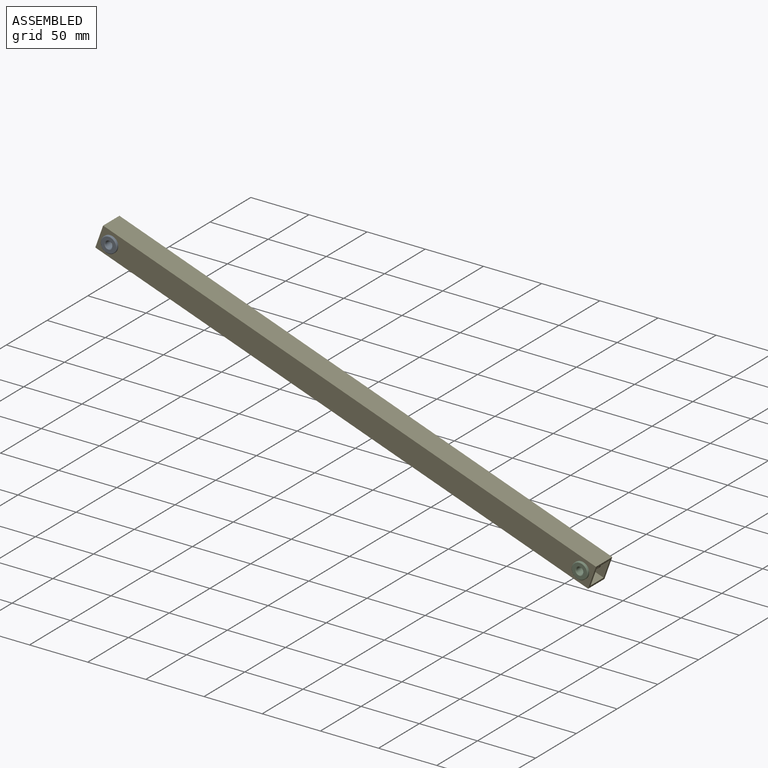
[diagram: assembled view]
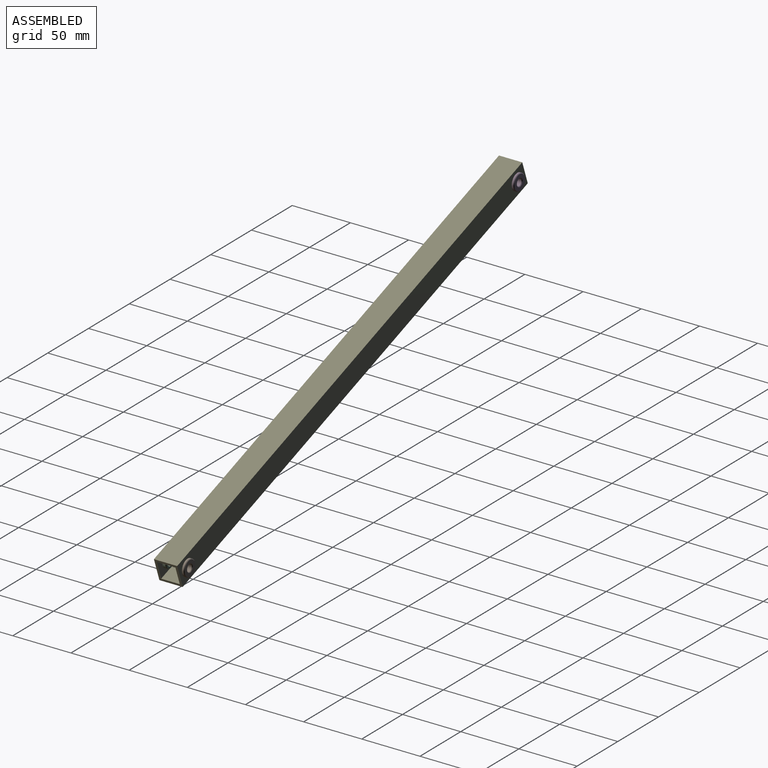
[diagram: assembled view, second angle]
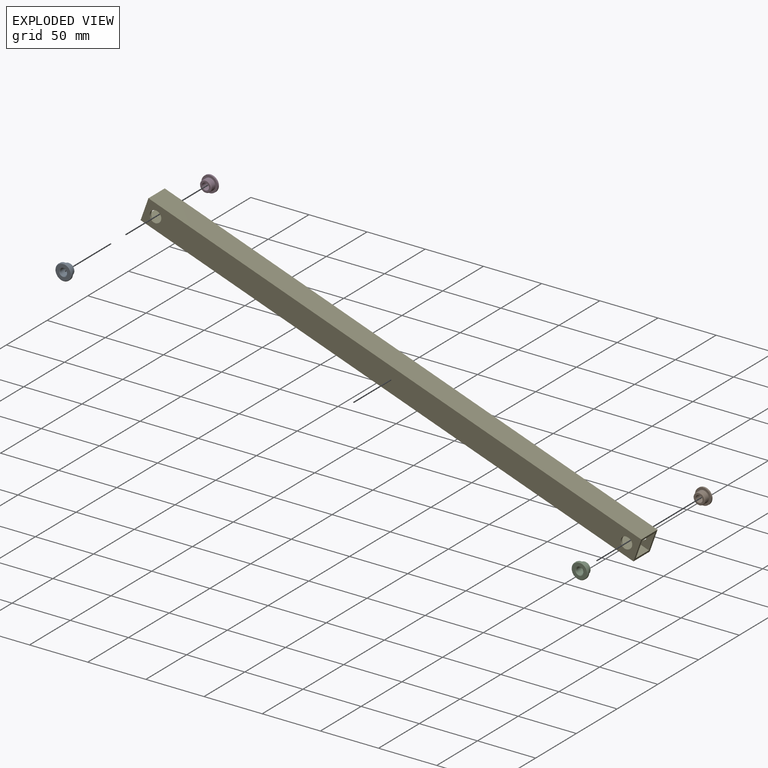
[diagram: exploded view]
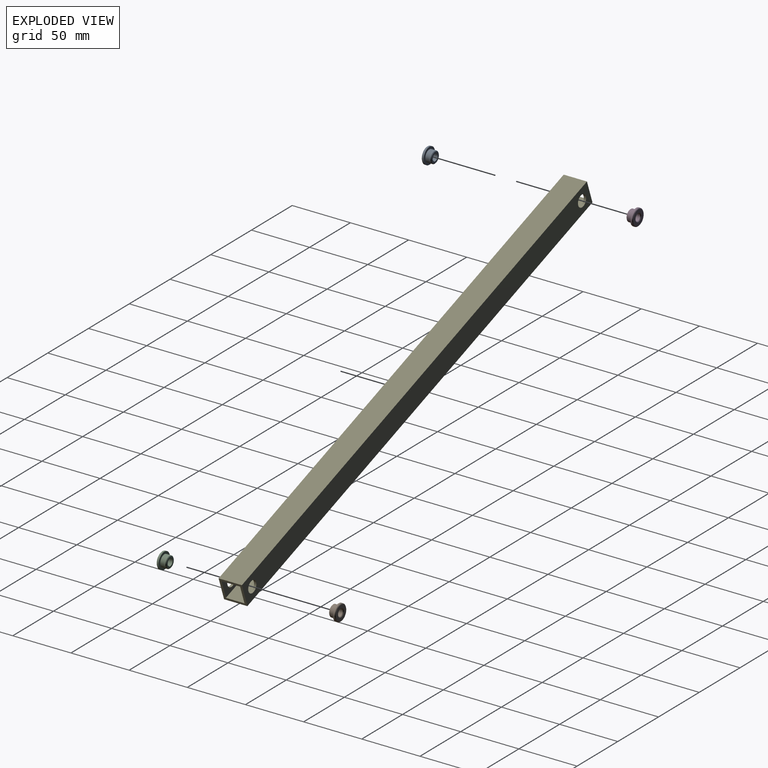
[diagram: exploded view, second angle]
ASSEMBLY  parts=5 mates=4
PART A: 9 faces, bbox 14x7x14 mm
  f0: cylinder r=3mm len=6.5mm, axis (0,1,0), area 122.5mm2, adj f2,f6
  f1: cylinder r=5mm len=10mm, axis (0,1,0), area 141.4mm2, adj f5,f8
  f2: plane 9x9mm, normal (0,1,0), area 35.3mm2, adj f0,f8
  f3: cylinder r=7mm len=14mm, axis (0,1,0), area 66mm2, adj f5,f7
  f4: plane 13x13mm, normal (0,-1,0), area 94.2mm2, adj f6,f7
  f5: plane 14x14mm, normal (0,1,0), area 75.4mm2, adj f1,f3
  f6: cone r=3mm half-angle=45deg, axis (0,-1,0), area 14.4mm2, adj f0,f4
  f7: cone r=6.5mm half-angle=45deg, axis (0,1,0), area 30mm2, adj f3,f4
  f8: cone r=5mm half-angle=45deg, axis (0,-1,0), area 21.1mm2, adj f1,f2
PART B: same geometry as A
PART C: same geometry as A
PART D: same geometry as A
PART E: 14 faces, bbox 450x20x20 mm
  f0: plane 450x16mm, normal (0,1,0), area 7042.9mm2, adj f1,f7,f8,f9,f11,f13
  f1: plane 450x16mm, normal (0,0,-1), area 7200mm2, adj f0,f2,f8,f9
  f2: plane 450x16mm, normal (0,-1,0), area 7042.9mm2, adj f1,f7,f8,f9,f10,f12
  f3: plane 450x20mm, normal (0,-1,0), area 8842.9mm2, adj f4,f6,f8,f9,f11,f13
  f4: plane 450x20mm, normal (0,0,-1), area 9000mm2, adj f3,f5,f8,f9
  f5: plane 450x20mm, normal (0,1,0), area 8842.9mm2, adj f4,f6,f8,f9,f10,f12
  f6: plane 450x20mm, normal (0,0,1), area 9000mm2, adj f3,f5,f8,f9
  f7: plane 450x16mm, normal (0,0,1), area 7200mm2, adj f0,f2,f8,f9
  f8: plane 20x20mm, normal (1,0,0), area 144mm2, adj f0,f1,f2,f3,f4,f5,f6,f7
  f9: plane 20x20mm, normal (-1,0,0), area 144mm2, adj f0,f1,f2,f3,f4,f5,f6,f7
  f10: cylinder r=5mm len=10mm, axis (0,-1,0), area 62.8mm2, adj f2,f5
  f11: cylinder r=5mm len=10mm, axis (0,-1,0), area 62.8mm2, adj f0,f3
  f12: cylinder r=5mm len=10mm, axis (0,-1,0), area 62.8mm2, adj f2,f5
  f13: cylinder r=5mm len=10mm, axis (0,-1,0), area 62.8mm2, adj f0,f3
PLACE A rot(axis=(0,1,0),19.7deg) t=(-34.88,-5,70.27)mm
PLACE B rot(axis=(0.99,0,-0.17),180deg) t=(369.91,5,-74.8)mm
PLACE C rot(axis=(0,1,0),19.7deg) t=(369.91,-5,-74.8)mm
PLACE D rot(axis=(0.99,0,-0.17),180deg) t=(-34.88,5,70.27)mm
PLACE E rot(axis=(0,1,0),19.7deg) t=(-46.53,-10,63.82)mm
MATE fastened C.f0 <-> E.f10  axis (0,1,0) through (371.05,-10,-75.21)mm
MATE fastened D.f0 <-> E.f12  axis (0,-1,0) through (-33.74,10,69.86)mm
MATE fastened A.f0 <-> E.f12  axis (0,1,0) through (-33.74,-10,69.86)mm
MATE fastened B.f0 <-> E.f10  axis (0,-1,0) through (371.05,10,-75.21)mm
